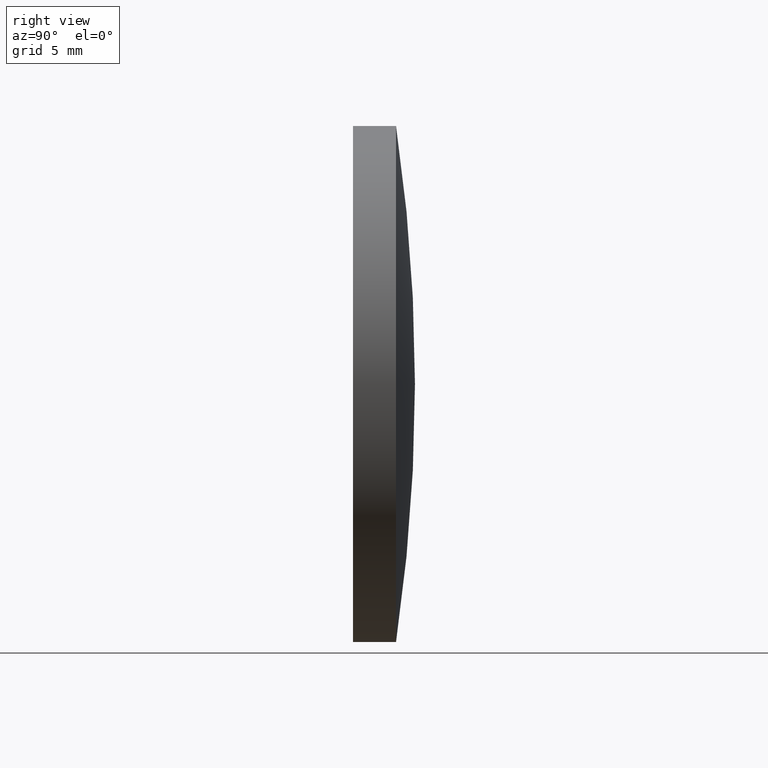
[diagram: clean part render]
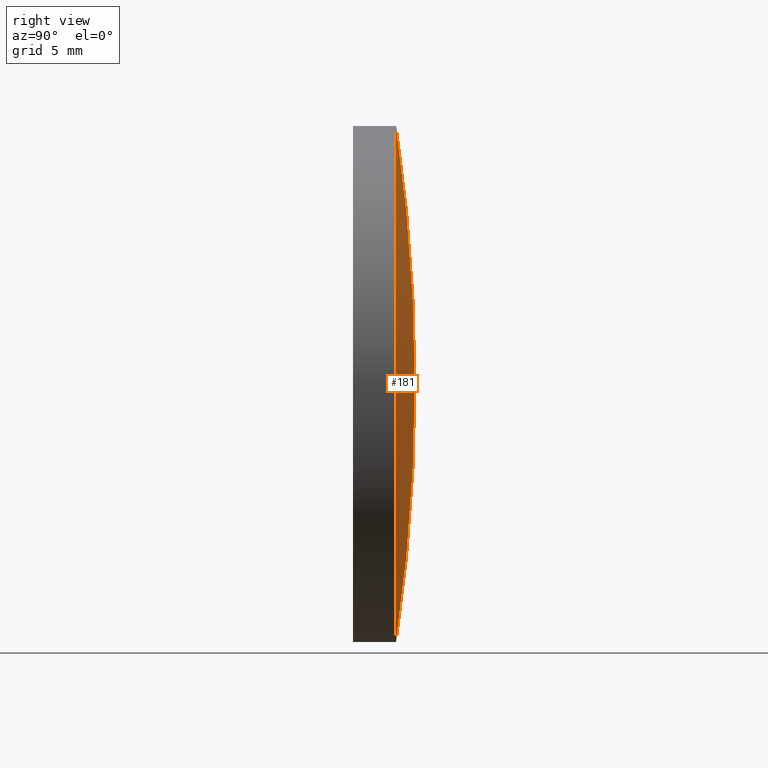
[diagram: same view with one face highlighted and labeled with its STEP entity id]
A machine part, right view. The second image highlights one B-rep face of the part: STEP entity #181.
In plain terms, the highlighted toroidal blend (fillet) surface has major radius 0.0335 mm and minor (blend) radius 103.28 mm.
Its self-contained STEP definition (entity closure, byte-faithful):
#19 = EDGE_LOOP ( 'NONE', ( #167, #198, #53 ) ) ;
#22 = FACE_OUTER_BOUND ( 'NONE', #19, .T. ) ;
#25 = AXIS2_PLACEMENT_3D ( 'NONE', #90, #58, #136 ) ;
#27 = EDGE_CURVE ( 'NONE', #50, #147, #162, .T. ) ;
#36 = DIRECTION ( 'NONE',  ( 1.000000000000000000, 0.000000000000000000, 1.224646799147353207E-16 ) ) ;
#50 = VERTEX_POINT ( 'NONE', #56 ) ;
#53 = ORIENTED_EDGE ( 'NONE', *, *, #141, .F. ) ;
#56 = CARTESIAN_POINT ( 'NONE',  ( 1.836970198721033533E-15, 2.500000000000000444, -15.00000000000003020 ) ) ;
#58 = DIRECTION ( 'NONE',  ( -0.000000000000000000, 1.000000000000000000, -0.000000000000000000 ) ) ;
#66 = TOROIDAL_SURFACE ( 'NONE', #164, -0.03353293412618370273, 103.2800000000000296 ) ;
#84 = AXIS2_PLACEMENT_3D ( 'NONE', #170, #153, #188 ) ;
#90 = CARTESIAN_POINT ( 'NONE',  ( 0.000000000000000000, 2.499999999999998224, 0.000000000000000000 ) ) ;
#107 = VERTEX_POINT ( 'NONE', #169 ) ;
#114 = CARTESIAN_POINT ( 'NONE',  ( 0.000000000000000000, -99.67999455626598149, 0.000000000000000000 ) ) ;
#126 = CARTESIAN_POINT ( 'NONE',  ( -4.106600044364992052E-18, -99.67999455626598149, 0.03353293412618370273 ) ) ;
#130 = CIRCLE ( 'NONE', #25, 15.00000000000000000 ) ;
#136 = DIRECTION ( 'NONE',  ( 0.000000000000000000, 0.000000000000000000, 1.000000000000000000 ) ) ;
#141 = EDGE_CURVE ( 'NONE', #107, #147, #171, .T. ) ;
#147 = VERTEX_POINT ( 'NONE', #186 ) ;
#150 = AXIS2_PLACEMENT_3D ( 'NONE', #126, #36, #193 ) ;
#153 = DIRECTION ( 'NONE',  ( -1.000000000000000000, 0.000000000000000000, 0.000000000000000000 ) ) ;
#159 = DIRECTION ( 'NONE',  ( 0.000000000000000000, 0.000000000000000000, 1.000000000000000000 ) ) ;
#162 = CIRCLE ( 'NONE', #150, 103.2800000000000296 ) ;
#164 = AXIS2_PLACEMENT_3D ( 'NONE', #114, #172, #159 ) ;
#167 = ORIENTED_EDGE ( 'NONE', *, *, #192, .T. ) ;
#169 = CARTESIAN_POINT ( 'NONE',  ( 0.000000000000000000, 2.500000000000000444, 15.00000000000003020 ) ) ;
#170 = CARTESIAN_POINT ( 'NONE',  ( 0.000000000000000000, -99.67999455626598149, -0.03353293412618370273 ) ) ;
#171 = CIRCLE ( 'NONE', #84, 103.2800000000000296 ) ;
#172 = DIRECTION ( 'NONE',  ( -0.000000000000000000, 1.000000000000000000, -0.000000000000000000 ) ) ;
#181 = ADVANCED_FACE ( 'NONE', ( #22 ), #66, .T. ) ;
#186 = CARTESIAN_POINT ( 'NONE',  ( 0.000000000000000000, 3.600000000000000089, 0.000000000000000000 ) ) ;
#188 = DIRECTION ( 'NONE',  ( 0.000000000000000000, 0.000000000000000000, 1.000000000000000000 ) ) ;
#192 = EDGE_CURVE ( 'NONE', #107, #50, #130, .T. ) ;
#193 = DIRECTION ( 'NONE',  ( 1.224646799147353207E-16, 0.000000000000000000, -1.000000000000000000 ) ) ;
#198 = ORIENTED_EDGE ( 'NONE', *, *, #27, .T. ) ;